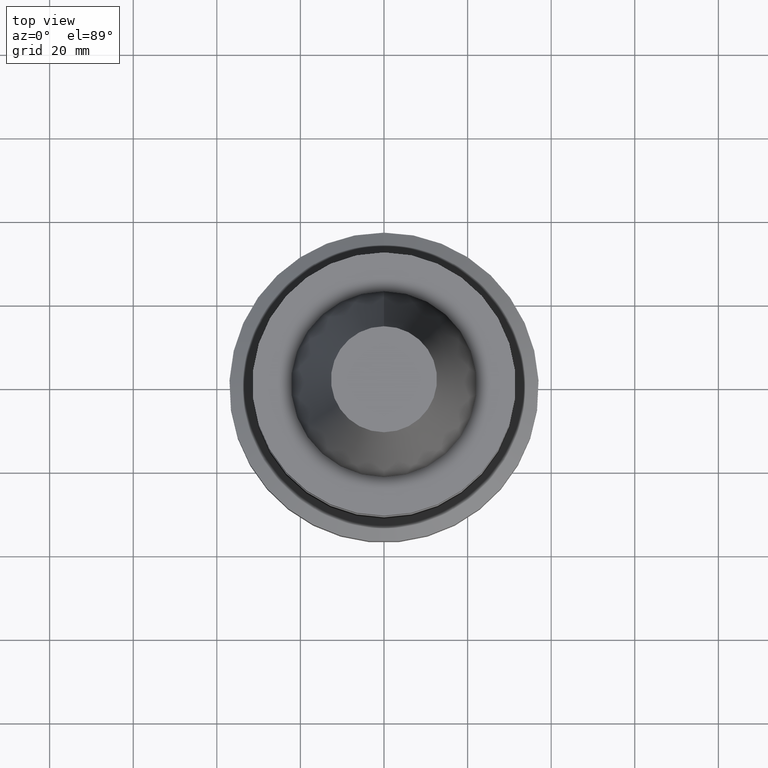
[diagram: clean part render]
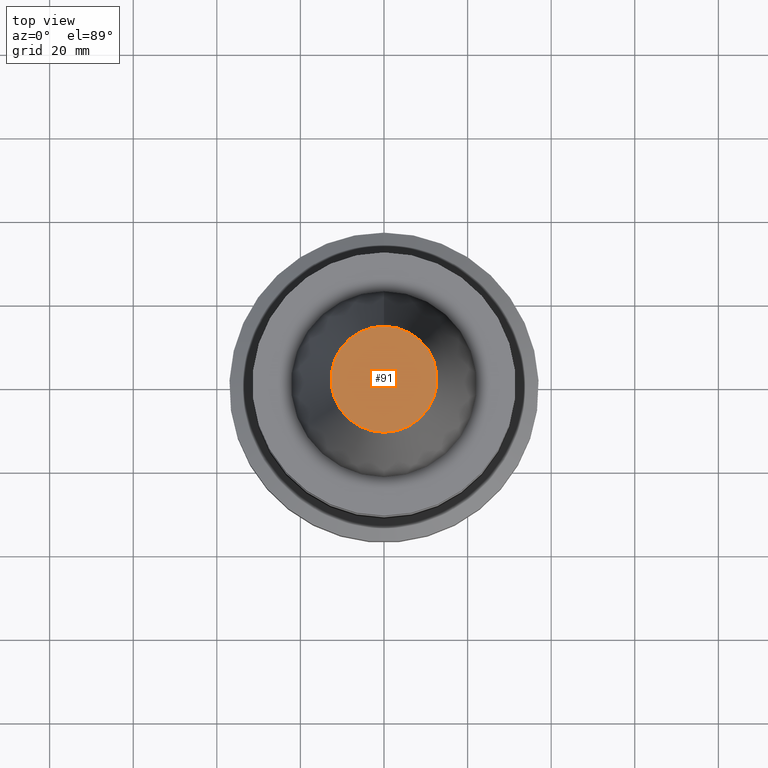
[diagram: same view with one face highlighted and labeled with its STEP entity id]
A machine part, top view. The second image highlights one B-rep face of the part: STEP entity #91.
In plain terms, the highlighted planar face has unit normal (-0, 0, 1).
Its self-contained STEP definition (entity closure, byte-faithful):
#91=ADVANCED_FACE('',(#140),#141,.T.);
#140=FACE_OUTER_BOUND('',#189,.T.);
#141=PLANE('',#190);
#189=EDGE_LOOP('',(#270));
#190=AXIS2_PLACEMENT_3D('',#271,#272,#273);
#270=ORIENTED_EDGE('',*,*,#289,.T.);
#271=CARTESIAN_POINT('',(-4.0045685131887E-015,6.34378157959774,65.3995668951544));
#272=DIRECTION('',(-6.12323399573677E-017,2.11765890203607E-015,1.0));
#273=DIRECTION('',(1.24842057072449E-031,1.0,-2.11765890203607E-015));
#289=EDGE_CURVE('',#320,#320,#321,.T.);
#320=VERTEX_POINT('',#352);
#321=CIRCLE('',#353,12.6875631591955);
#352=CARTESIAN_POINT('',(-4.0045685131887E-015,12.6875631591955,65.3995668951544));
#353=AXIS2_PLACEMENT_3D('',#399,#400,#401);
#399=CARTESIAN_POINT('',(-4.0045685131887E-015,-1.48755100171998E-015,65.3995668951544));
#400=DIRECTION('',(-6.12323399573677E-017,-2.27455787911142E-017,1.0));
#401=DIRECTION('',(-6.21991774384026E-033,1.0,2.27455787911142E-017));